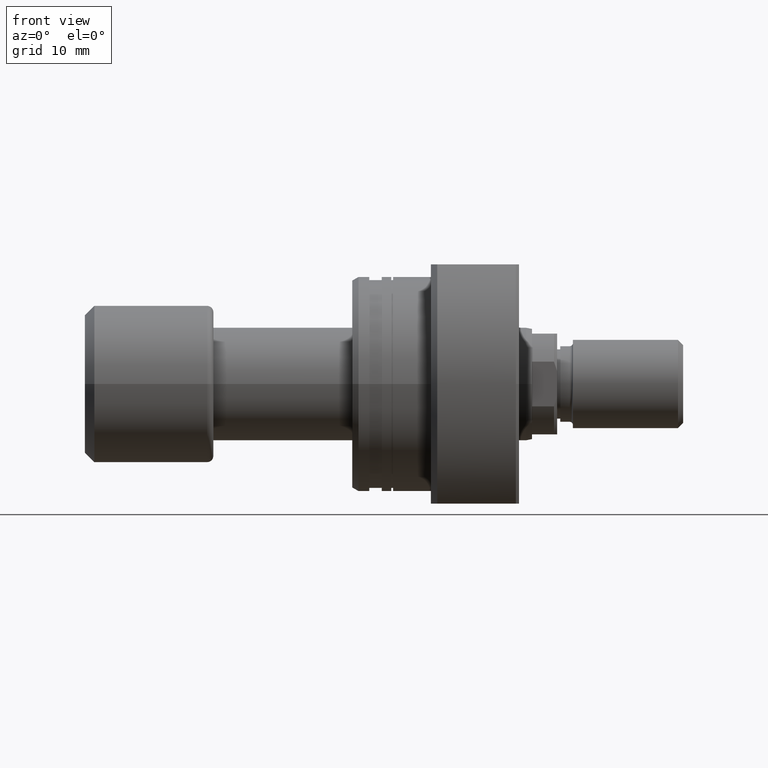
[diagram: clean part render]
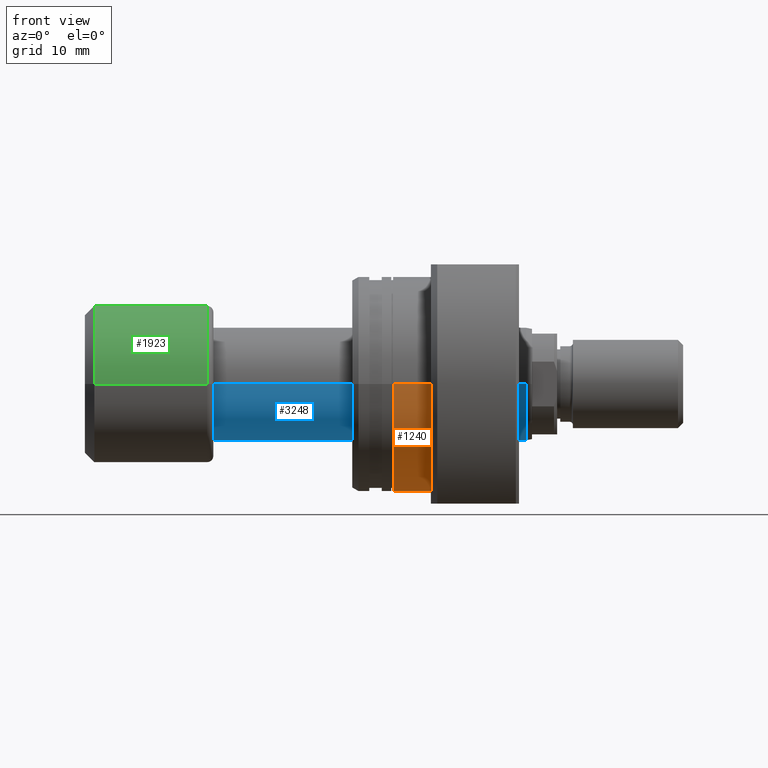
[diagram: same view with three faces highlighted in distinct colors, each labeled with its STEP entity id]
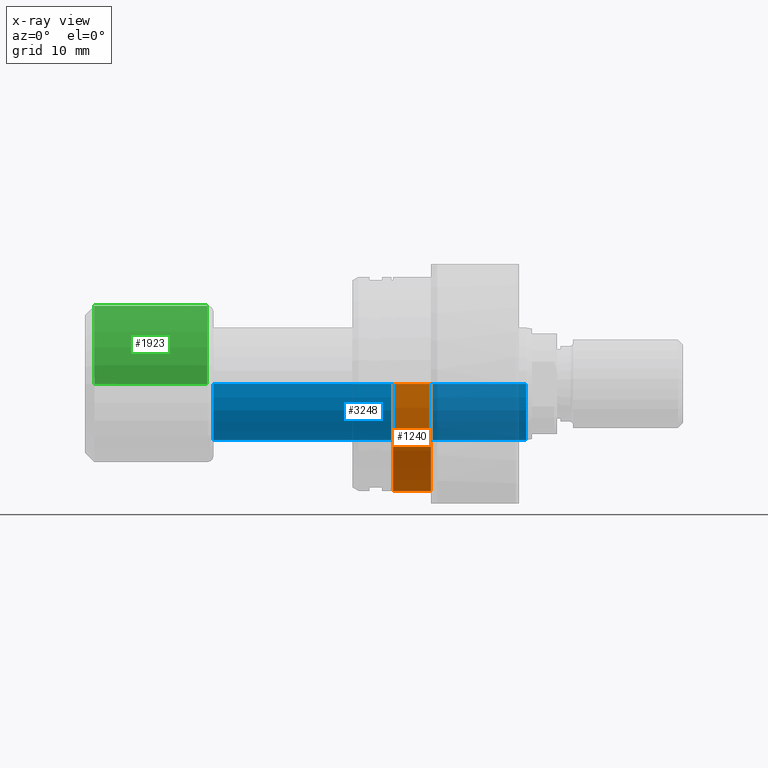
[diagram: x-ray of the same camera — body ghosted, the three highlighted faces saturated]
A machine part, front view with three faces highlighted in distinct colors.
The next image is the same camera in x-ray (body ghosted, the three faces saturated) — at least one of them is partly hidden behind the body in this view.
Their STEP definitions:

[orange] entity #1240 — the highlighted cylindrical surface (partial cylindrical patch) has radius 17 mm, axis along (1, 0, 0).
#171 = CYLINDRICAL_SURFACE ( 'NONE', #1218, 16.99999999999999645 ) ;
#187 = DIRECTION ( 'NONE',  ( 0.000000000000000000, 1.000000000000000000, 0.000000000000000000 ) ) ;
#213 = ORIENTED_EDGE ( 'NONE', *, *, #3202, .F. ) ;
#390 = EDGE_CURVE ( 'NONE', #3505, #2540, #1074, .T. ) ;
#412 = ORIENTED_EDGE ( 'NONE', *, *, #991, .T. ) ;
#420 = AXIS2_PLACEMENT_3D ( 'NONE', #1743, #1704, #2553 ) ;
#442 = EDGE_CURVE ( 'NONE', #3049, #653, #3405, .T. ) ;
#448 = VECTOR ( 'NONE', #1720, 1000.000000000000000 ) ;
#535 = CARTESIAN_POINT ( 'NONE',  ( 6.499999999999783284, 6.007701278835876331E-17, 0.000000000000000000 ) ) ;
#605 = CARTESIAN_POINT ( 'NONE',  ( 26.50000000000000711, 16.99999999999999645, 0.000000000000000000 ) ) ;
#633 = VECTOR ( 'NONE', #2927, 1000.000000000000000 ) ;
#653 = VERTEX_POINT ( 'NONE', #2689 ) ;
#991 = EDGE_CURVE ( 'NONE', #2540, #653, #2309, .T. ) ;
#1025 = CARTESIAN_POINT ( 'NONE',  ( 26.50000000000000711, 2.449293598294708880E-16, 0.000000000000000000 ) ) ;
#1074 = CIRCLE ( 'NONE', #2022, 16.99999999999999645 ) ;
#1096 = FACE_OUTER_BOUND ( 'NONE', #3349, .T. ) ;
#1218 = AXIS2_PLACEMENT_3D ( 'NONE', #1025, #3095, #187 ) ;
#1240 = ADVANCED_FACE ( 'NONE', ( #1096 ), #171, .T. ) ;
#1242 = LINE ( 'NONE', #2089, #633 ) ;
#1388 = DIRECTION ( 'NONE',  ( 1.000000000000000000, 9.242617352055502386E-18, -0.000000000000000000 ) ) ;
#1651 = DIRECTION ( 'NONE',  ( 0.000000000000000000, 1.000000000000000000, 0.000000000000000000 ) ) ;
#1704 = DIRECTION ( 'NONE',  ( 1.000000000000000000, 9.242617352055502386E-18, -0.000000000000000000 ) ) ;
#1717 = ORIENTED_EDGE ( 'NONE', *, *, #390, .T. ) ;
#1720 = DIRECTION ( 'NONE',  ( 1.000000000000000000, 9.242617352055502386E-18, -0.000000000000000000 ) ) ;
#1743 = CARTESIAN_POINT ( 'NONE',  ( 12.50000000000000178, 1.155327169006937960E-16, 0.000000000000000000 ) ) ;
#1897 = ORIENTED_EDGE ( 'NONE', *, *, #442, .F. ) ;
#1978 = CARTESIAN_POINT ( 'NONE',  ( 6.499999999999783284, -16.99999999999999645, 2.081899558550499885E-15 ) ) ;
#2022 = AXIS2_PLACEMENT_3D ( 'NONE', #535, #1388, #1651 ) ;
#2089 = CARTESIAN_POINT ( 'NONE',  ( 26.50000000000000711, -16.99999999999999645, 2.081899558550499885E-15 ) ) ;
#2309 = LINE ( 'NONE', #605, #448 ) ;
#2540 = VERTEX_POINT ( 'NONE', #2864 ) ;
#2553 = DIRECTION ( 'NONE',  ( 0.000000000000000000, 1.000000000000000000, 0.000000000000000000 ) ) ;
#2689 = CARTESIAN_POINT ( 'NONE',  ( 12.50000000000000178, 16.99999999999999645, 0.000000000000000000 ) ) ;
#2861 = CARTESIAN_POINT ( 'NONE',  ( 12.50000000000000178, -16.99999999999999645, 2.081899558550499885E-15 ) ) ;
#2864 = CARTESIAN_POINT ( 'NONE',  ( 6.499999999999783284, 16.99999999999999645, 0.000000000000000000 ) ) ;
#2927 = DIRECTION ( 'NONE',  ( 1.000000000000000000, 9.242617352055502386E-18, -0.000000000000000000 ) ) ;
#3049 = VERTEX_POINT ( 'NONE', #2861 ) ;
#3095 = DIRECTION ( 'NONE',  ( 1.000000000000000000, 9.242617352055502386E-18, -0.000000000000000000 ) ) ;
#3202 = EDGE_CURVE ( 'NONE', #3505, #3049, #1242, .T. ) ;
#3349 = EDGE_LOOP ( 'NONE', ( #213, #1717, #412, #1897 ) ) ;
#3405 = CIRCLE ( 'NONE', #420, 16.99999999999999645 ) ;
#3505 = VERTEX_POINT ( 'NONE', #1978 ) ;

[blue] entity #3248 — the highlighted cylindrical surface (partial cylindrical patch) has radius 9 mm, axis along (-1, -0, -0).
#72 = DIRECTION ( 'NONE',  ( 0.000000000000000000, -1.000000000000000000, 0.000000000000000000 ) ) ;
#160 = CARTESIAN_POINT ( 'NONE',  ( 70.06675751232378957, -9.000000000000190070, 0.000000000000000000 ) ) ;
#351 = CARTESIAN_POINT ( 'NONE',  ( -9.625880898621694358E-17, 9.000000000000094147, 1.102182119232629547E-15 ) ) ;
#362 = EDGE_LOOP ( 'NONE', ( #2012, #1628, #566, #3677 ) ) ;
#468 = EDGE_CURVE ( 'NONE', #2850, #3366, #779, .T. ) ;
#496 = CARTESIAN_POINT ( 'NONE',  ( 20.39999999999999858, -9.000000000000000000, 0.000000000000000000 ) ) ;
#523 = DIRECTION ( 'NONE',  ( -1.000000000000000000, -1.069542322069065801E-17, -0.000000000000000000 ) ) ;
#566 = ORIENTED_EDGE ( 'NONE', *, *, #1258, .T. ) ;
#628 = DIRECTION ( 'NONE',  ( -1.000000000000000000, -1.069542322069065801E-17, -0.000000000000000000 ) ) ;
#629 = AXIS2_PLACEMENT_3D ( 'NONE', #801, #1878, #1659 ) ;
#668 = DIRECTION ( 'NONE',  ( -1.000000000000000000, -1.069542322069065801E-17, -0.000000000000000000 ) ) ;
#721 = CARTESIAN_POINT ( 'NONE',  ( 70.06675751232378957, 9.000000000000190070, 1.102182119232641183E-15 ) ) ;
#779 = CIRCLE ( 'NONE', #2137, 9.000000000000190070 ) ;
#801 = CARTESIAN_POINT ( 'NONE',  ( 20.39999999999999858, 2.181866337020894116E-16, 0.000000000000000000 ) ) ;
#1211 = EDGE_CURVE ( 'NONE', #2694, #3279, #2221, .T. ) ;
#1257 = FACE_OUTER_BOUND ( 'NONE', #362, .T. ) ;
#1258 = EDGE_CURVE ( 'NONE', #3366, #3279, #3072, .T. ) ;
#1490 = DIRECTION ( 'NONE',  ( 1.069542322069065955E-17, -1.000000000000000000, 0.000000000000000000 ) ) ;
#1544 = CARTESIAN_POINT ( 'NONE',  ( 20.39999999999999858, 9.000000000000000000, 1.102182119232623630E-15 ) ) ;
#1628 = ORIENTED_EDGE ( 'NONE', *, *, #468, .T. ) ;
#1659 = DIRECTION ( 'NONE',  ( 0.000000000000000000, -1.000000000000000000, 0.000000000000000000 ) ) ;
#1878 = DIRECTION ( 'NONE',  ( -1.000000000000000000, -1.069542322069065801E-17, -0.000000000000000000 ) ) ;
#2012 = ORIENTED_EDGE ( 'NONE', *, *, #3205, .F. ) ;
#2037 = CYLINDRICAL_SURFACE ( 'NONE', #3138, 9.000000000000094147 ) ;
#2137 = AXIS2_PLACEMENT_3D ( 'NONE', #2568, #3503, #72 ) ;
#2221 = CIRCLE ( 'NONE', #629, 9.000000000000000000 ) ;
#2568 = CARTESIAN_POINT ( 'NONE',  ( 70.06675751232378957, 7.493936252958094024E-16, 0.000000000000000000 ) ) ;
#2694 = VERTEX_POINT ( 'NONE', #1544 ) ;
#2765 = CARTESIAN_POINT ( 'NONE',  ( 9.625880898621694358E-17, -9.000000000000094147, 0.000000000000000000 ) ) ;
#2850 = VERTEX_POINT ( 'NONE', #721 ) ;
#3072 = LINE ( 'NONE', #2765, #3610 ) ;
#3138 = AXIS2_PLACEMENT_3D ( 'NONE', #3184, #628, #1490 ) ;
#3184 = CARTESIAN_POINT ( 'NONE',  ( 0.000000000000000000, 0.000000000000000000, 0.000000000000000000 ) ) ;
#3205 = EDGE_CURVE ( 'NONE', #2850, #2694, #3237, .T. ) ;
#3237 = LINE ( 'NONE', #351, #3258 ) ;
#3248 = ADVANCED_FACE ( 'NONE', ( #1257 ), #2037, .T. ) ;
#3258 = VECTOR ( 'NONE', #668, 1000.000000000000000 ) ;
#3279 = VERTEX_POINT ( 'NONE', #496 ) ;
#3366 = VERTEX_POINT ( 'NONE', #160 ) ;
#3503 = DIRECTION ( 'NONE',  ( -1.000000000000000000, -1.069542322069065801E-17, -0.000000000000000000 ) ) ;
#3610 = VECTOR ( 'NONE', #523, 1000.000000000000000 ) ;
#3677 = ORIENTED_EDGE ( 'NONE', *, *, #1211, .F. ) ;

[green] entity #1923 — the highlighted cylindrical surface (partial cylindrical patch) has radius 12.5 mm, axis along (-1, -0, -0).
#107 = CYLINDRICAL_SURFACE ( 'NONE', #3554, 12.50000000000000000 ) ;
#122 = VERTEX_POINT ( 'NONE', #1594 ) ;
#225 = LINE ( 'NONE', #2744, #343 ) ;
#297 = VERTEX_POINT ( 'NONE', #567 ) ;
#343 = VECTOR ( 'NONE', #469, 1000.000000000000000 ) ;
#349 = CARTESIAN_POINT ( 'NONE',  ( 1.500000000000001554, 1.604313483103600319E-17, 0.000000000000000000 ) ) ;
#469 = DIRECTION ( 'NONE',  ( -1.000000000000000000, -1.069542322069065801E-17, -0.000000000000000000 ) ) ;
#516 = CIRCLE ( 'NONE', #990, 12.50000000000000000 ) ;
#546 = VERTEX_POINT ( 'NONE', #1485 ) ;
#567 = CARTESIAN_POINT ( 'NONE',  ( 1.500000000000001776, -12.50000000000000000, 1.530808498934191521E-15 ) ) ;
#698 = DIRECTION ( 'NONE',  ( -1.000000000000000000, -1.069542322069065801E-17, -0.000000000000000000 ) ) ;
#990 = AXIS2_PLACEMENT_3D ( 'NONE', #3536, #698, #1863 ) ;
#1010 = EDGE_CURVE ( 'NONE', #2113, #122, #2869, .T. ) ;
#1485 = CARTESIAN_POINT ( 'NONE',  ( 19.40000000000000213, -12.50000000000000000, 0.000000000000000000 ) ) ;
#1594 = CARTESIAN_POINT ( 'NONE',  ( 1.500000000000001332, 12.50000000000000000, 0.000000000000000000 ) ) ;
#1644 = AXIS2_PLACEMENT_3D ( 'NONE', #349, #3164, #3451 ) ;
#1784 = FACE_OUTER_BOUND ( 'NONE', #3423, .T. ) ;
#1845 = EDGE_CURVE ( 'NONE', #297, #122, #1939, .T. ) ;
#1863 = DIRECTION ( 'NONE',  ( 0.000000000000000000, -1.000000000000000000, 0.000000000000000000 ) ) ;
#1923 = ADVANCED_FACE ( 'NONE', ( #1784 ), #107, .T. ) ;
#1939 = CIRCLE ( 'NONE', #1644, 12.50000000000000000 ) ;
#1973 = CARTESIAN_POINT ( 'NONE',  ( -1.336927902586332490E-16, 12.50000000000000000, 1.530808498934191521E-15 ) ) ;
#2011 = EDGE_CURVE ( 'NONE', #546, #2113, #516, .T. ) ;
#2019 = DIRECTION ( 'NONE',  ( -1.000000000000000000, -1.069542322069065801E-17, -0.000000000000000000 ) ) ;
#2113 = VERTEX_POINT ( 'NONE', #3576 ) ;
#2329 = DIRECTION ( 'NONE',  ( 1.069542322069065955E-17, -1.000000000000000000, 0.000000000000000000 ) ) ;
#2345 = EDGE_CURVE ( 'NONE', #546, #297, #225, .T. ) ;
#2362 = ORIENTED_EDGE ( 'NONE', *, *, #1010, .T. ) ;
#2623 = CARTESIAN_POINT ( 'NONE',  ( 0.000000000000000000, 0.000000000000000000, 0.000000000000000000 ) ) ;
#2744 = CARTESIAN_POINT ( 'NONE',  ( 1.336927902586332490E-16, -12.50000000000000000, 0.000000000000000000 ) ) ;
#2851 = DIRECTION ( 'NONE',  ( -1.000000000000000000, -1.069542322069065801E-17, -0.000000000000000000 ) ) ;
#2869 = LINE ( 'NONE', #1973, #3547 ) ;
#3017 = ORIENTED_EDGE ( 'NONE', *, *, #1845, .F. ) ;
#3160 = ORIENTED_EDGE ( 'NONE', *, *, #2345, .F. ) ;
#3164 = DIRECTION ( 'NONE',  ( -1.000000000000000000, -1.069542322069065801E-17, -0.000000000000000000 ) ) ;
#3423 = EDGE_LOOP ( 'NONE', ( #3584, #2362, #3017, #3160 ) ) ;
#3451 = DIRECTION ( 'NONE',  ( 1.734723475976807094E-17, -1.000000000000000000, 0.000000000000000000 ) ) ;
#3536 = CARTESIAN_POINT ( 'NONE',  ( 19.40000000000000213, 2.074912104813987675E-16, 0.000000000000000000 ) ) ;
#3547 = VECTOR ( 'NONE', #2851, 1000.000000000000000 ) ;
#3554 = AXIS2_PLACEMENT_3D ( 'NONE', #2623, #2019, #2329 ) ;
#3576 = CARTESIAN_POINT ( 'NONE',  ( 19.40000000000000213, 12.50000000000000000, 1.530808498934191521E-15 ) ) ;
#3584 = ORIENTED_EDGE ( 'NONE', *, *, #2011, .T. ) ;